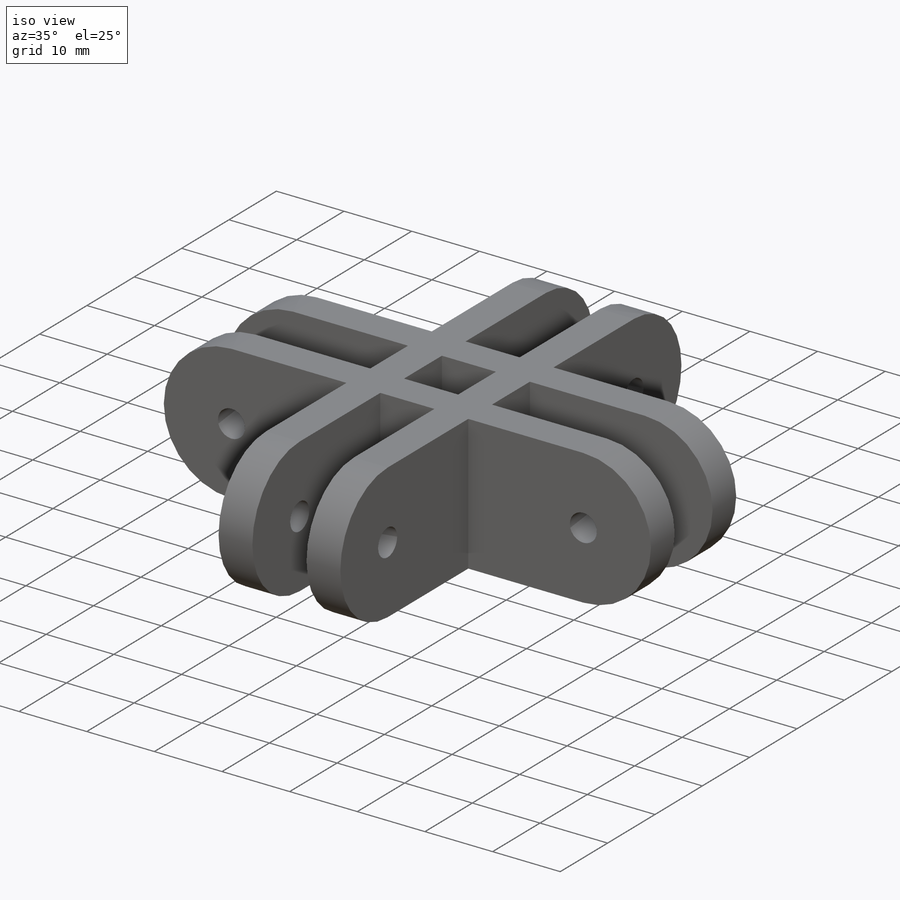
[diagram: iso view]
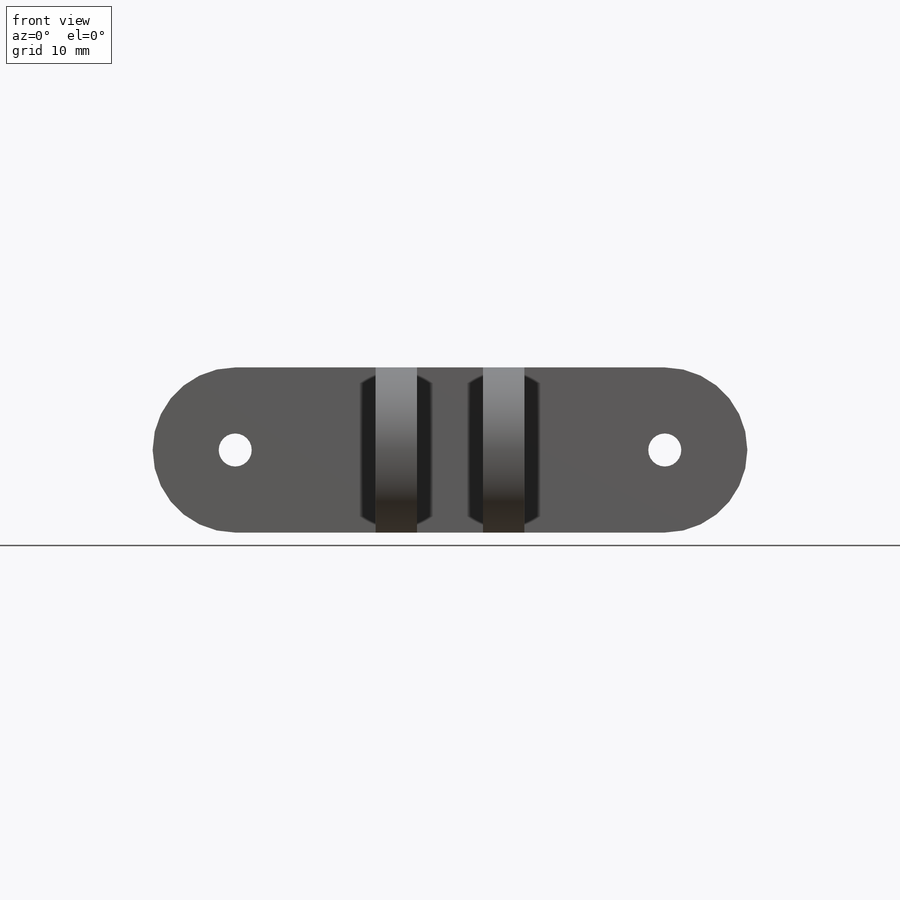
[diagram: front view]
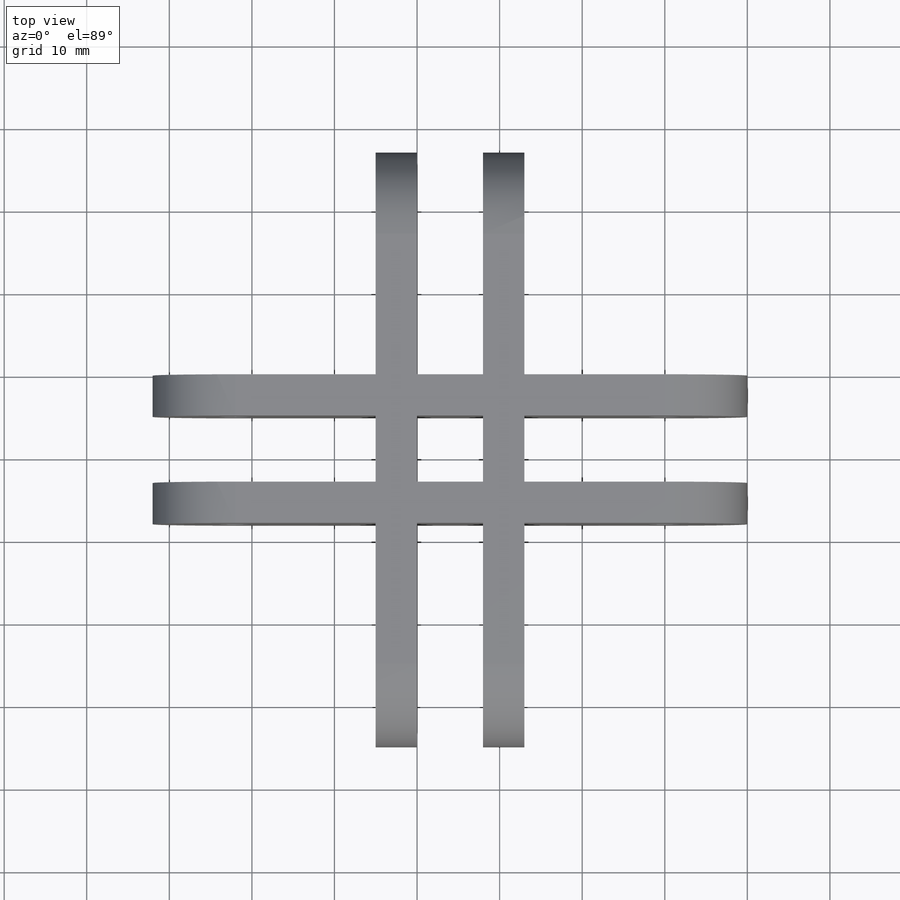
[diagram: top view]
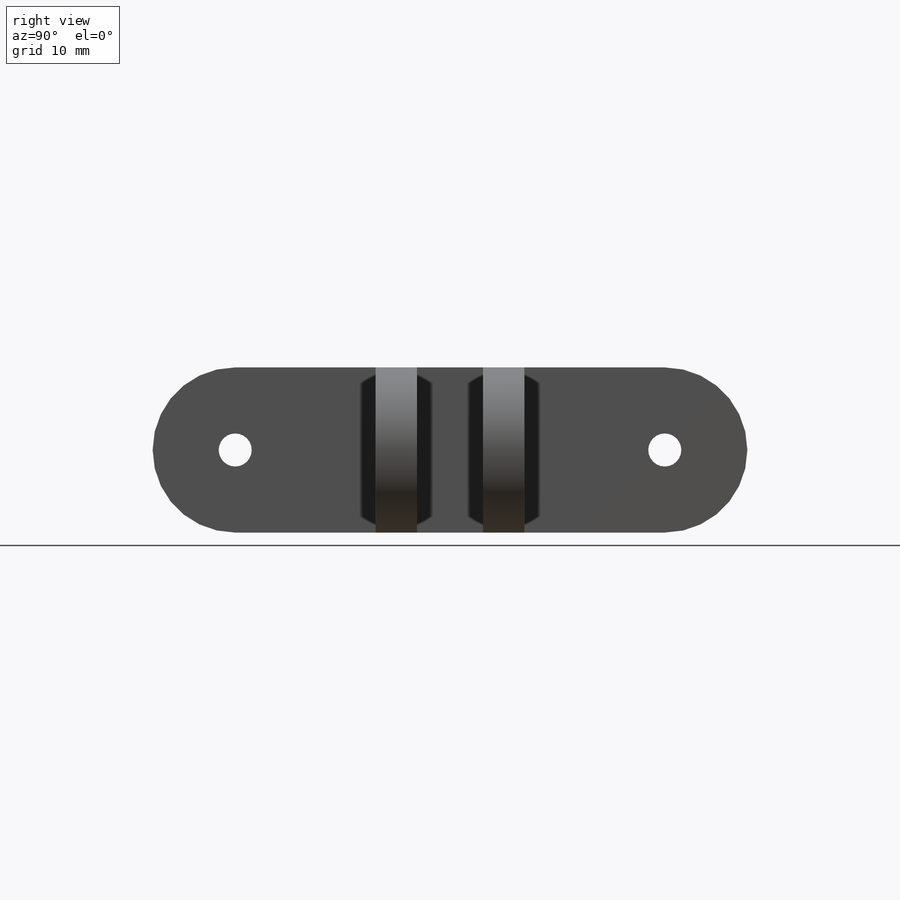
[diagram: right view]
SOLIDWORKS PART (.sldprt)
format: sldprt  version: not decoded by parser v0  size: 235,008 bytes
history: native  units: mm
features: plane x6, sketch x6, extrude x4, material x1 (+9 scaffold rows collapsed)
feature tree (26):
  scaffold x9  (default folders/planes/origin — collapsed)
  material  "Material <sin especificar>"
  plane  "Alzado"
  plane  "Planta"
  plane  "Vista lateral"
  sketch  "Croquis1"  dims[D3=4.0mm D1=10.0mm D2=10.0mm D4=26.01mm]
  extrude  "Saliente-Extruir1"  Depth=5mm
  sketch  "Croquis2"  dims[D1=8.0mm]
  plane  "Plano1"
  sketch  "Croquis3"
  extrude  "Saliente-Extruir2"  Depth=5mm
  sketch  "Croquis4"  dims[D1=27.01mm D2=27.01mm]
  plane  "Plano2"
  sketch  "Croquis5"  dims[D2=4.0mm D1=26.01mm]
  extrude  "Saliente-Extruir3"  Depth=5mm
  plane  "Plano3"
  sketch  "Croquis6"
  extrude  "Saliente-Extruir4"  Depth=5mm
decode coverage: 8 of 10 modeling features carry decoded parameters
note: suppression state not decoded; provenance and decode notes live in map.json
